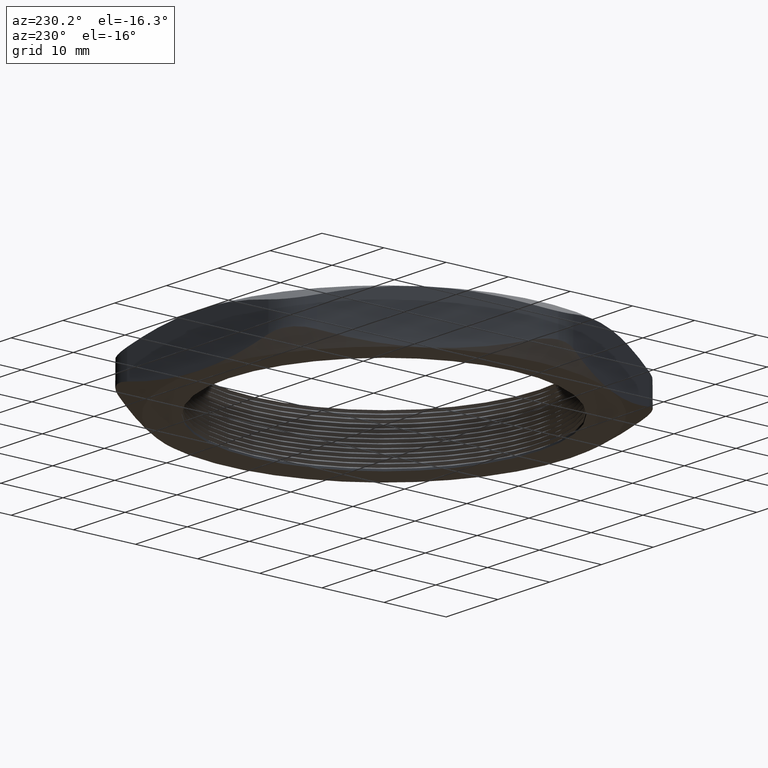
[diagram: clean part render]
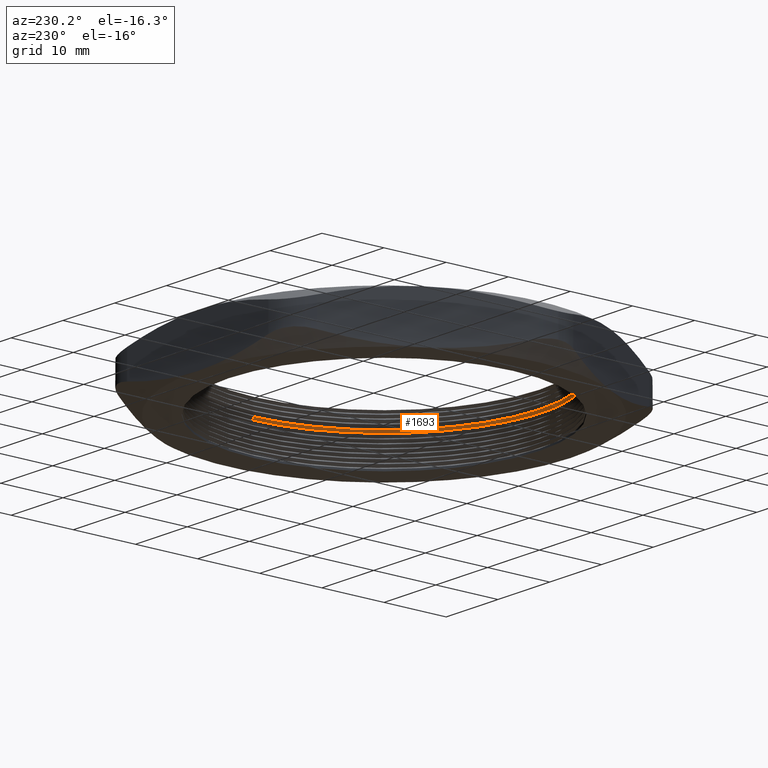
[diagram: same view with one face highlighted and labeled with its STEP entity id]
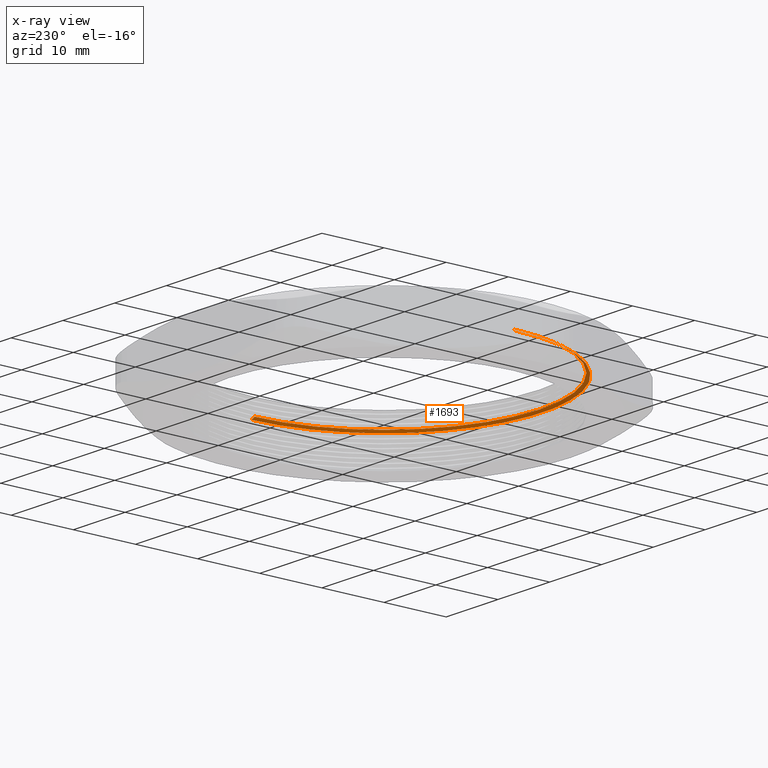
[diagram: x-ray of the same camera — body ghosted, the highlighted face saturated]
A machine part, auxiliary view. The second image highlights one B-rep face of the part: STEP entity #1693.
The next image is the same camera in x-ray: the body ghosted, the highlighted face saturated — about 14% of this face is hidden behind the body in this view.
In plain terms, the highlighted conical surface has half-angle 60 deg.
Its self-contained STEP definition (entity closure, byte-faithful):
#133 = CARTESIAN_POINT ( 'NONE',  ( -1.005000000000000100, 0.0000000000000000000, 0.1984529946162076900 ) ) ;
#195 = DIRECTION ( 'NONE',  ( 1.000000000000000000, 0.0000000000000000000, 0.0000000000000000000 ) ) ;
#196 = DIRECTION ( 'NONE',  ( 0.0000000000000000000, 0.0000000000000000000, 1.000000000000000000 ) ) ;
#197 = CARTESIAN_POINT ( 'NONE',  ( 0.0000000000000000000, 0.0000000000000000000, 0.1984529946162076900 ) ) ;
#198 = AXIS2_PLACEMENT_3D ( 'NONE', #197, #196, #195 ) ;
#199 = CIRCLE ( 'NONE', #198, 1.005000000000000100 ) ;
#225 = AXIS2_PLACEMENT_3D ( 'NONE', #230, #285, #284 ) ;
#226 = CIRCLE ( 'NONE', #225, 0.9849999999999999900 ) ;
#230 = CARTESIAN_POINT ( 'NONE',  ( 0.0000000000000000000, 0.0000000000000000000, 0.2099999999999999400 ) ) ;
#233 = DIRECTION ( 'NONE',  ( -1.000000000000000000, 0.0000000000000000000, 0.0000000000000000000 ) ) ;
#234 = DIRECTION ( 'NONE',  ( 0.0000000000000000000, 0.0000000000000000000, -1.000000000000000000 ) ) ;
#235 = CARTESIAN_POINT ( 'NONE',  ( 0.0000000000000000000, 0.0000000000000000000, 0.1984529946162076900 ) ) ;
#236 = AXIS2_PLACEMENT_3D ( 'NONE', #235, #234, #233 ) ;
#237 = CONICAL_SURFACE ( 'NONE', #236, 1.005000000000000100, 1.047197551196607800 ) ;
#239 = FACE_OUTER_BOUND ( 'NONE', #1695, .T. ) ;
#278 = DIRECTION ( 'NONE',  ( 0.8660254037844437000, 1.060575238724913100E-016, -0.4999999999999912300 ) ) ;
#279 = VECTOR ( 'NONE', #278, 39.37007874015748100 ) ;
#280 = CARTESIAN_POINT ( 'NONE',  ( 1.005000000000000100, 1.230770033143090100E-016, 0.1984529946162076900 ) ) ;
#281 = LINE ( 'NONE', #280, #279 ) ;
#282 = CARTESIAN_POINT ( 'NONE',  ( 0.9849999999999999900, 1.206277097160143100E-016, 0.2099999999999999400 ) ) ;
#283 = CARTESIAN_POINT ( 'NONE',  ( -0.9849999999999999900, 0.0000000000000000000, 0.2099999999999999400 ) ) ;
#284 = DIRECTION ( 'NONE',  ( 1.000000000000000000, 0.0000000000000000000, 0.0000000000000000000 ) ) ;
#285 = DIRECTION ( 'NONE',  ( 0.0000000000000000000, 0.0000000000000000000, 1.000000000000000000 ) ) ;
#306 = CARTESIAN_POINT ( 'NONE',  ( 1.005000000000000100, 1.230770033143090100E-016, 0.1984529946162076900 ) ) ;
#382 = DIRECTION ( 'NONE',  ( -0.8660254037844437000, 0.0000000000000000000, -0.4999999999999912300 ) ) ;
#383 = VECTOR ( 'NONE', #382, 39.37007874015748100 ) ;
#384 = CARTESIAN_POINT ( 'NONE',  ( -1.005000000000000100, 0.0000000000000000000, 0.1984529946162076900 ) ) ;
#385 = LINE ( 'NONE', #384, #383 ) ;
#1656 = VERTEX_POINT ( 'NONE', #133 ) ;
#1681 = EDGE_CURVE ( 'NONE', #1656, #1729, #199, .T. ) ;
#1693 = ADVANCED_FACE ( 'NONE', ( #239 ), #237, .F. ) ;
#1695 = EDGE_LOOP ( 'NONE', ( #1697, #1701, #1704, #1706 ) ) ;
#1697 = ORIENTED_EDGE ( 'NONE', *, *, #1698, .T. ) ;
#1698 = EDGE_CURVE ( 'NONE', #1699, #1700, #226, .T. ) ;
#1699 = VERTEX_POINT ( 'NONE', #283 ) ;
#1700 = VERTEX_POINT ( 'NONE', #282 ) ;
#1701 = ORIENTED_EDGE ( 'NONE', *, *, #1702, .T. ) ;
#1702 = EDGE_CURVE ( 'NONE', #1700, #1729, #281, .T. ) ;
#1704 = ORIENTED_EDGE ( 'NONE', *, *, #1681, .F. ) ;
#1706 = ORIENTED_EDGE ( 'NONE', *, *, #1778, .F. ) ;
#1729 = VERTEX_POINT ( 'NONE', #306 ) ;
#1778 = EDGE_CURVE ( 'NONE', #1699, #1656, #385, .T. ) ;